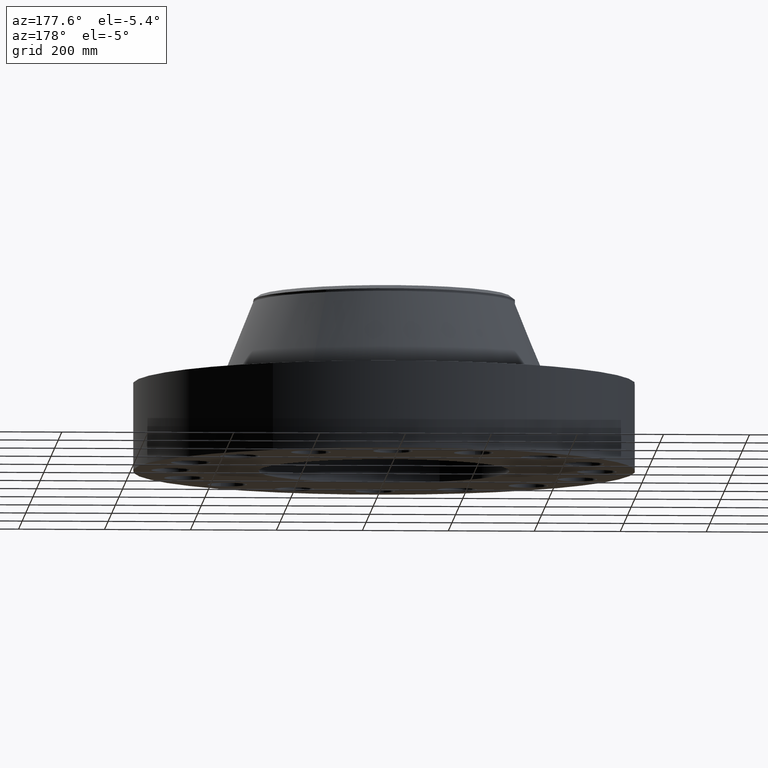
[diagram: clean part render]
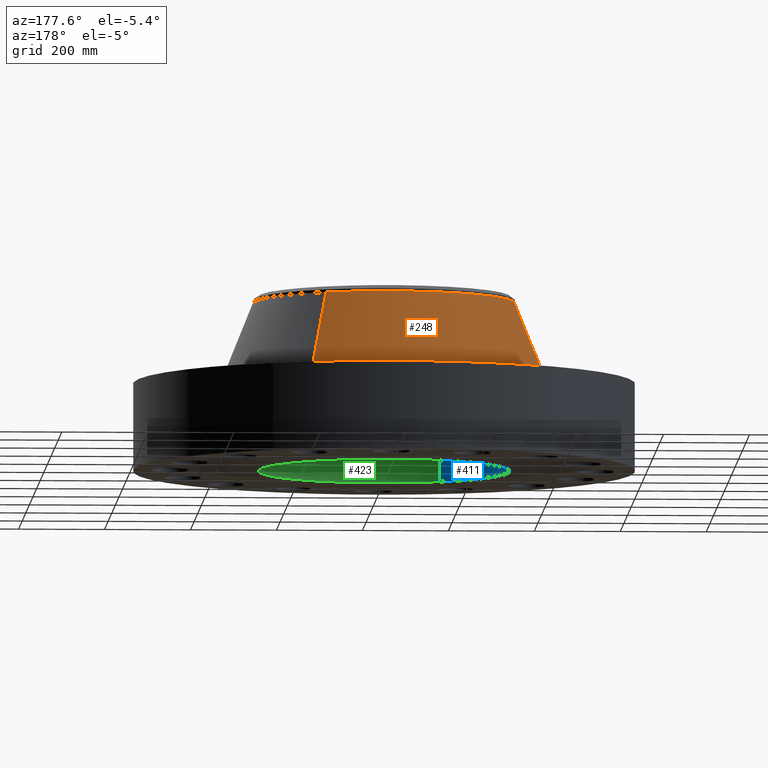
[diagram: same view with three faces highlighted in distinct colors, each labeled with its STEP entity id]
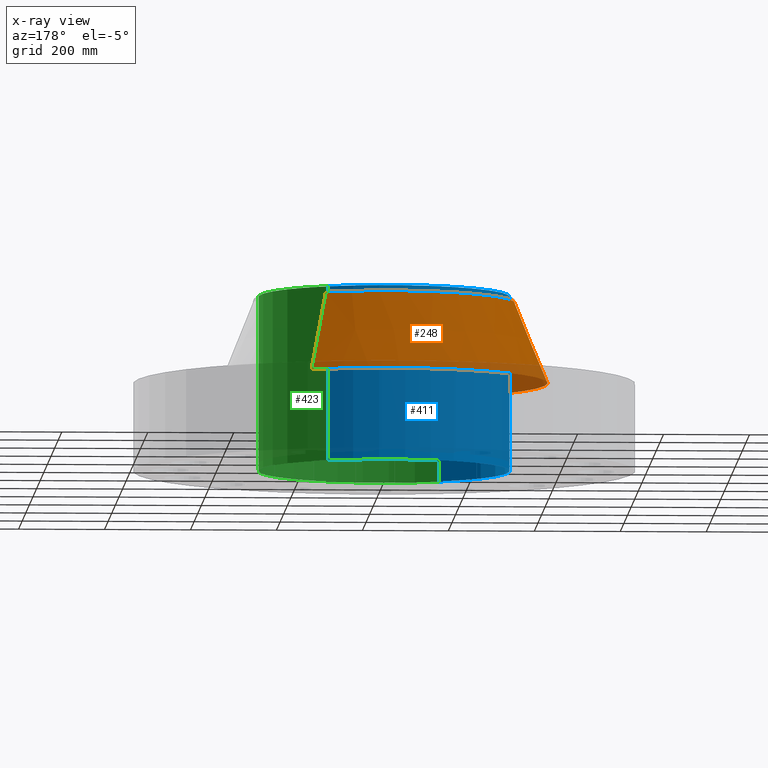
[diagram: x-ray of the same camera — body ghosted, the three highlighted faces saturated]
A machine part, auxiliary view with three faces highlighted in distinct colors.
The next image is the same camera in x-ray (body ghosted, the three faces saturated) — at least one of them is partly hidden behind the body in this view.
Their STEP definitions:

[orange] entity #248 — the highlighted conical surface has half-angle 21.959 deg.
#196=AXIS2_PLACEMENT_3D('Circle Axis2P3D',#194,#195,$) ;
#209=AXIS2_PLACEMENT_3D('Cone Axis2P3D',#206,#207,#208) ;
#239=AXIS2_PLACEMENT_3D('Circle Axis2P3D',#237,#238,$) ;
#167=CARTESIAN_POINT('Vertex',(7.17686089849,13.1371557551,8.0751265778)) ;
#174=CARTESIAN_POINT('Vertex',(-7.17686089849,-13.1371557551,8.0751265778)) ;
#194=CARTESIAN_POINT('Axis2P3D Location',(0.,0.,8.0751265778)) ;
#206=CARTESIAN_POINT('Axis2P3D Location',(0.,0.,15.4405354815)) ;
#211=CARTESIAN_POINT('Line Origine',(6.46498368088,11.8340732489,11.7578310297)) ;
#215=CARTESIAN_POINT('Vertex',(5.75310646327,10.5309907427,15.4405354815)) ;
#222=CARTESIAN_POINT('Vertex',(-5.75310646327,-10.5309907427,15.4405354815)) ;
#225=CARTESIAN_POINT('Line Origine',(-6.46498368088,-11.8340732489,11.7578310297)) ;
#237=CARTESIAN_POINT('Axis2P3D Location',(0.,0.,15.4405354815)) ;
#195=DIRECTION('Axis2P3D Direction',(0.,0.,-0.0393700787402)) ;
#207=DIRECTION('Axis2P3D Direction',(0.,0.,-0.0393700787402)) ;
#208=DIRECTION('Axis2P3D XDirection',(-0.0188750212049,-0.0345504945626,0.)) ;
#212=DIRECTION('Vector Direction',(0.00705822330205,0.0129199910915,-0.0365138112777)) ;
#226=DIRECTION('Vector Direction',(-0.00705822330205,-0.0129199910915,-0.0365138112777)) ;
#238=DIRECTION('Axis2P3D Direction',(0.,0.,-0.0393700787402)) ;
#213=VECTOR('Line Direction',#212,0.0393700787402) ;
#227=VECTOR('Line Direction',#226,0.0393700787402) ;
#243=ORIENTED_EDGE('',*,*,#198,.F.) ;
#244=ORIENTED_EDGE('',*,*,#229,.T.) ;
#245=ORIENTED_EDGE('',*,*,#241,.T.) ;
#246=ORIENTED_EDGE('',*,*,#217,.F.) ;
#248=ADVANCED_FACE('PartBody',(#247),#210,.T.) ;
#197=CIRCLE('generated circle',#196,14.9697092053) ;
#240=CIRCLE('generated circle',#239,12.) ;
#210=CONICAL_SURFACE('Cone',#209,12.,0.383259186518) ;
#198=EDGE_CURVE('',#175,#168,#197,.T.) ;
#217=EDGE_CURVE('',#168,#216,#214,.F.) ;
#229=EDGE_CURVE('',#175,#223,#228,.F.) ;
#241=EDGE_CURVE('',#223,#216,#240,.T.) ;
#242=EDGE_LOOP('',(#243,#244,#245,#246)) ;
#247=FACE_OUTER_BOUND('',#242,.T.) ;
#214=LINE('Line',#211,#213) ;
#228=LINE('Line',#225,#227) ;
#168=VERTEX_POINT('',#167) ;
#175=VERTEX_POINT('',#174) ;
#216=VERTEX_POINT('',#215) ;
#223=VERTEX_POINT('',#222) ;

[blue] entity #411 — the highlighted cylindrical surface (partial cylindrical patch) has radius 292.1 mm, axis along (0, 0, -1).
#356=AXIS2_PLACEMENT_3D('Circle Axis2P3D',#354,#355,$) ;
#384=AXIS2_PLACEMENT_3D('Cylinder Axis2P3D',#381,#382,#383) ;
#395=AXIS2_PLACEMENT_3D('Circle Axis2P3D',#393,#394,$) ;
#354=CARTESIAN_POINT('Axis2P3D Location',(0.,0.,16.0000000001)) ;
#358=CARTESIAN_POINT('Vertex',(-5.51339369397,-10.0921994618,16.0000000001)) ;
#360=CARTESIAN_POINT('Vertex',(5.51339369397,10.0921994618,16.0000000001)) ;
#381=CARTESIAN_POINT('Axis2P3D Location',(0.,0.,8.00000000003)) ;
#386=CARTESIAN_POINT('Line Origine',(-5.51339369397,-10.0921994618,8.00000000003)) ;
#390=CARTESIAN_POINT('Vertex',(-5.51339369397,-10.0921994618,-8.39223703654E-014)) ;
#393=CARTESIAN_POINT('Axis2P3D Location',(0.,0.,-8.50413353036E-014)) ;
#397=CARTESIAN_POINT('Vertex',(5.51339369397,10.0921994618,-8.39223703654E-014)) ;
#400=CARTESIAN_POINT('Line Origine',(5.51339369397,10.0921994618,8.00000000003)) ;
#355=DIRECTION('Axis2P3D Direction',(0.,0.,-0.0393700787402)) ;
#382=DIRECTION('Axis2P3D Direction',(0.,0.,-0.0393700787402)) ;
#383=DIRECTION('Axis2P3D XDirection',(0.0188750212049,0.0345504945626,0.)) ;
#387=DIRECTION('Vector Direction',(0.,0.,-0.0393700787402)) ;
#394=DIRECTION('Axis2P3D Direction',(0.,0.,-0.0393700787402)) ;
#401=DIRECTION('Vector Direction',(0.,0.,-0.0393700787402)) ;
#388=VECTOR('Line Direction',#387,0.0393700787402) ;
#402=VECTOR('Line Direction',#401,0.0393700787402) ;
#406=ORIENTED_EDGE('',*,*,#362,.F.) ;
#407=ORIENTED_EDGE('',*,*,#392,.T.) ;
#408=ORIENTED_EDGE('',*,*,#399,.T.) ;
#409=ORIENTED_EDGE('',*,*,#404,.F.) ;
#411=ADVANCED_FACE('PartBody',(#410),#385,.F.) ;
#357=CIRCLE('generated circle',#356,11.5) ;
#396=CIRCLE('generated circle',#395,11.5) ;
#385=CYLINDRICAL_SURFACE('generated cylinder',#384,11.5) ;
#362=EDGE_CURVE('',#359,#361,#357,.T.) ;
#392=EDGE_CURVE('',#359,#391,#389,.T.) ;
#399=EDGE_CURVE('',#391,#398,#396,.T.) ;
#404=EDGE_CURVE('',#361,#398,#403,.T.) ;
#405=EDGE_LOOP('',(#406,#407,#408,#409)) ;
#410=FACE_OUTER_BOUND('',#405,.T.) ;
#389=LINE('Line',#386,#388) ;
#403=LINE('Line',#400,#402) ;
#359=VERTEX_POINT('',#358) ;
#361=VERTEX_POINT('',#360) ;
#391=VERTEX_POINT('',#390) ;
#398=VERTEX_POINT('',#397) ;

[green] entity #423 — the highlighted cylindrical surface (partial cylindrical patch) has radius 292.1 mm, axis along (0, 0, -1).
#365=AXIS2_PLACEMENT_3D('Circle Axis2P3D',#363,#364,$) ;
#384=AXIS2_PLACEMENT_3D('Cylinder Axis2P3D',#381,#382,#383) ;
#414=AXIS2_PLACEMENT_3D('Circle Axis2P3D',#412,#413,$) ;
#358=CARTESIAN_POINT('Vertex',(-5.51339369397,-10.0921994618,16.0000000001)) ;
#360=CARTESIAN_POINT('Vertex',(5.51339369397,10.0921994618,16.0000000001)) ;
#363=CARTESIAN_POINT('Axis2P3D Location',(0.,0.,16.0000000001)) ;
#381=CARTESIAN_POINT('Axis2P3D Location',(0.,0.,8.00000000003)) ;
#386=CARTESIAN_POINT('Line Origine',(-5.51339369397,-10.0921994618,8.00000000003)) ;
#390=CARTESIAN_POINT('Vertex',(-5.51339369397,-10.0921994618,-8.39223703654E-014)) ;
#397=CARTESIAN_POINT('Vertex',(5.51339369397,10.0921994618,-8.39223703654E-014)) ;
#400=CARTESIAN_POINT('Line Origine',(5.51339369397,10.0921994618,8.00000000003)) ;
#412=CARTESIAN_POINT('Axis2P3D Location',(0.,0.,-8.50413353036E-014)) ;
#364=DIRECTION('Axis2P3D Direction',(0.,0.,-0.0393700787402)) ;
#382=DIRECTION('Axis2P3D Direction',(0.,0.,-0.0393700787402)) ;
#383=DIRECTION('Axis2P3D XDirection',(0.0188750212049,0.0345504945626,0.)) ;
#387=DIRECTION('Vector Direction',(0.,0.,-0.0393700787402)) ;
#401=DIRECTION('Vector Direction',(0.,0.,-0.0393700787402)) ;
#413=DIRECTION('Axis2P3D Direction',(0.,0.,-0.0393700787402)) ;
#388=VECTOR('Line Direction',#387,0.0393700787402) ;
#402=VECTOR('Line Direction',#401,0.0393700787402) ;
#418=ORIENTED_EDGE('',*,*,#367,.F.) ;
#419=ORIENTED_EDGE('',*,*,#404,.T.) ;
#420=ORIENTED_EDGE('',*,*,#416,.T.) ;
#421=ORIENTED_EDGE('',*,*,#392,.F.) ;
#423=ADVANCED_FACE('PartBody',(#422),#385,.F.) ;
#366=CIRCLE('generated circle',#365,11.5) ;
#415=CIRCLE('generated circle',#414,11.5) ;
#385=CYLINDRICAL_SURFACE('generated cylinder',#384,11.5) ;
#367=EDGE_CURVE('',#361,#359,#366,.T.) ;
#392=EDGE_CURVE('',#359,#391,#389,.T.) ;
#404=EDGE_CURVE('',#361,#398,#403,.T.) ;
#416=EDGE_CURVE('',#398,#391,#415,.T.) ;
#417=EDGE_LOOP('',(#418,#419,#420,#421)) ;
#422=FACE_OUTER_BOUND('',#417,.T.) ;
#389=LINE('Line',#386,#388) ;
#403=LINE('Line',#400,#402) ;
#359=VERTEX_POINT('',#358) ;
#361=VERTEX_POINT('',#360) ;
#391=VERTEX_POINT('',#390) ;
#398=VERTEX_POINT('',#397) ;